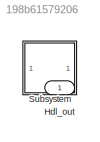
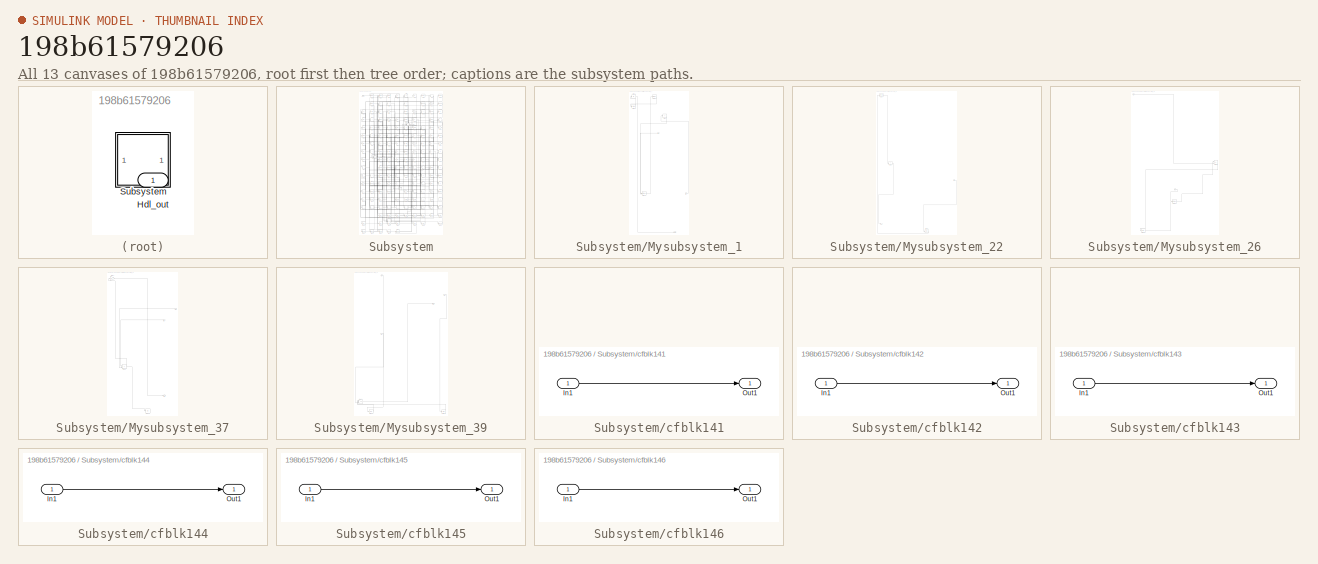
[diagram: thumbnail index - all 13 canvases of the model, root first then tree order]
MODEL slx_198b61579206
KIND model
CONFIG AbsTol = auto
CONFIG EnableMultiTasking = off
CONFIG FixedStep = auto
CONFIG MaxStep = auto
CONFIG MinStep = auto
CONFIG RelTol = 1e-3
CONFIG SampleTimeConstraint = Unconstrained
CONFIG SolverName = VariableStepAuto
CONFIG StartTime = 0.0
CONFIG StopTime = 10.0
BLOCK [Outport] Hdl_out
  OutDataTypeStr = uint8
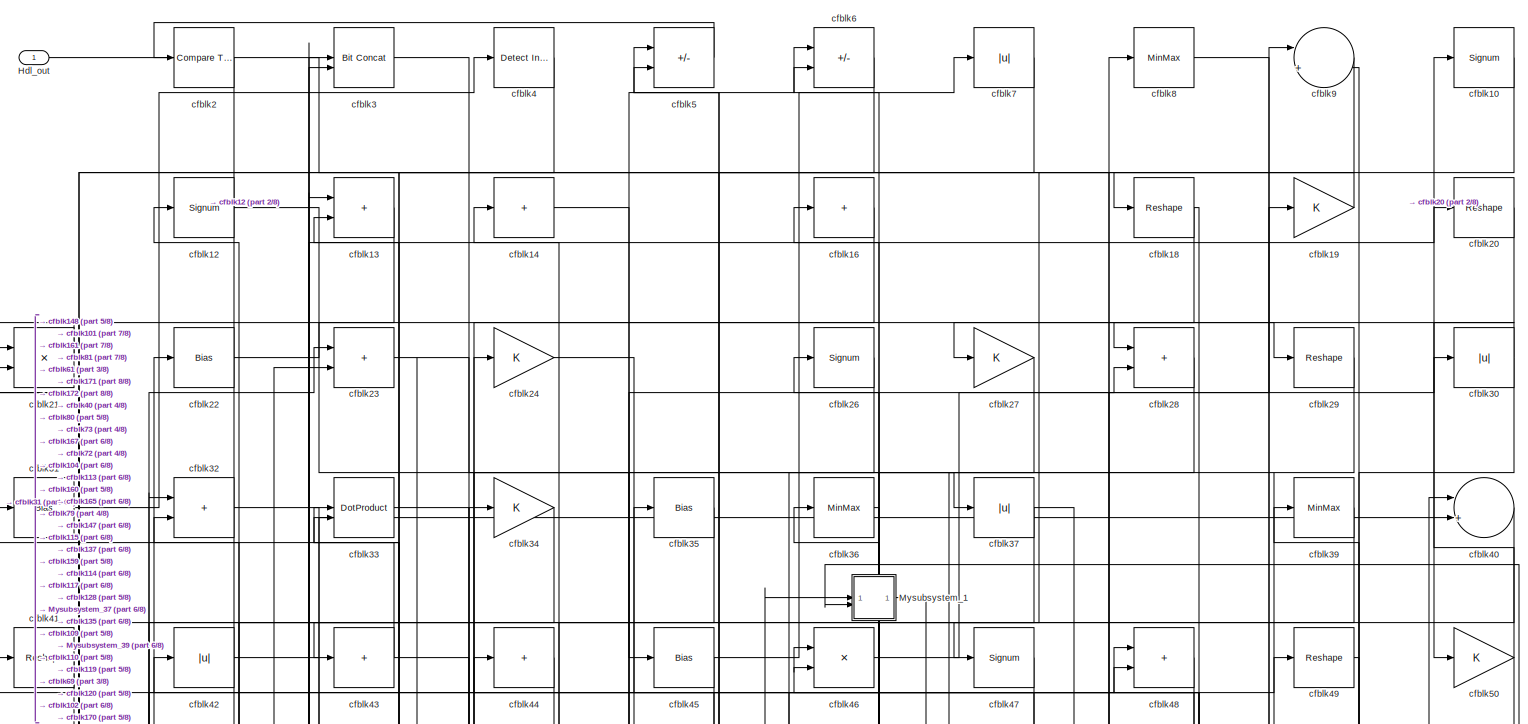
[diagram: Subsystem - part 1/8, full width, top band]
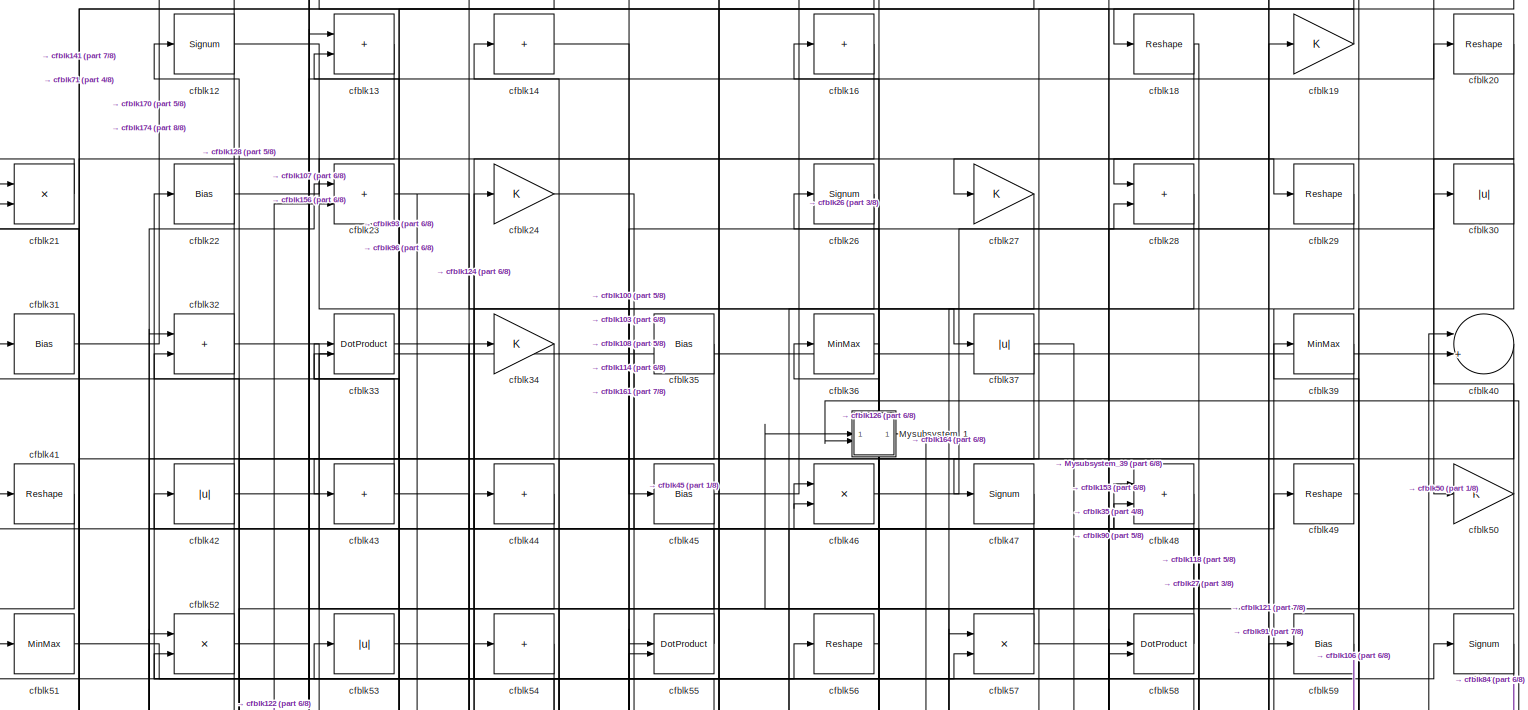
[diagram: Subsystem - part 2/8, full width, top band]
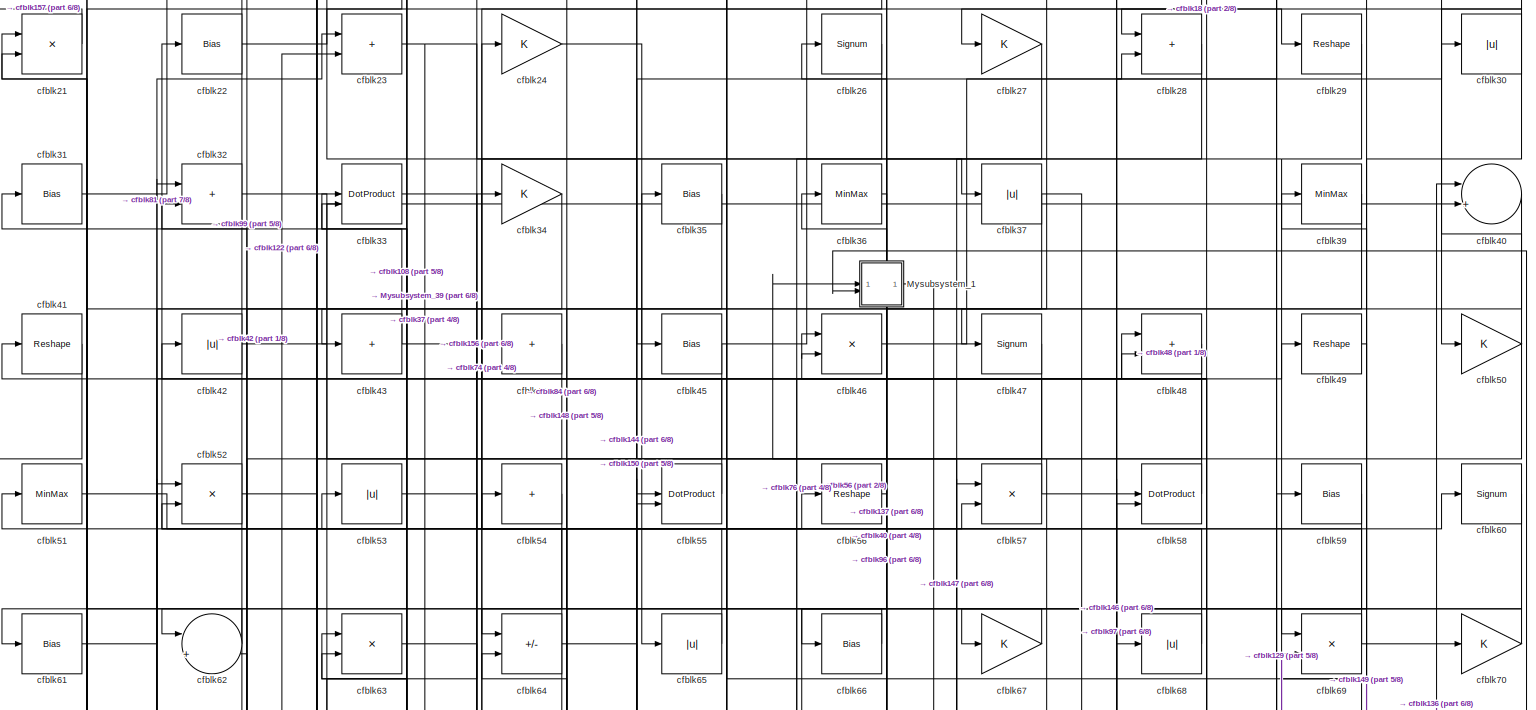
[diagram: Subsystem - part 3/8, full width, top band]
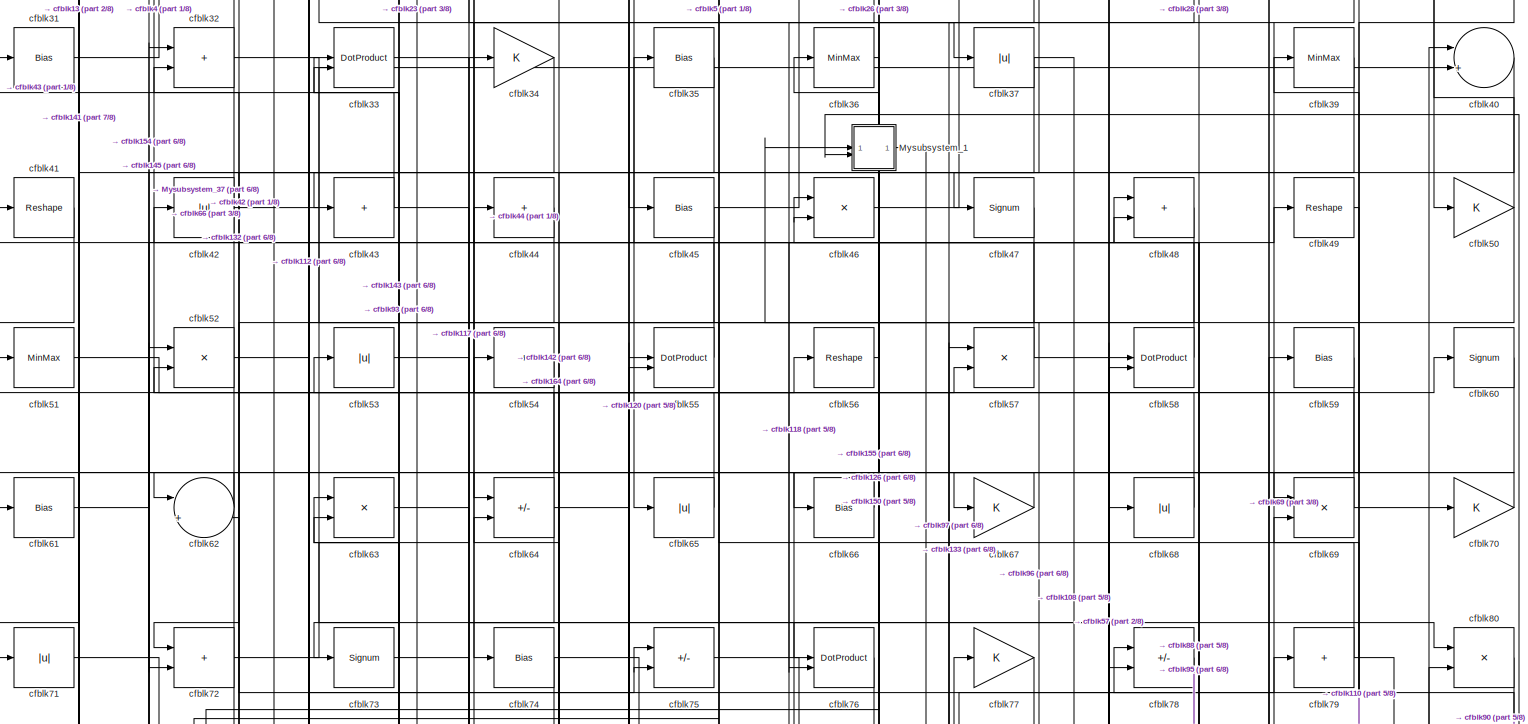
[diagram: Subsystem - part 4/8, full width, top band]
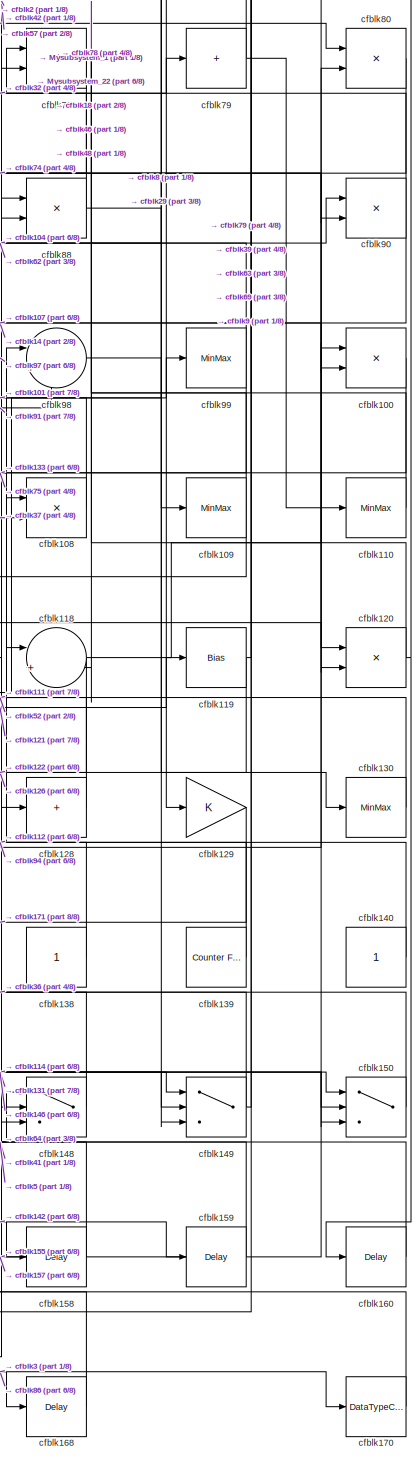
[diagram: Subsystem - part 5/8, bottom right region]
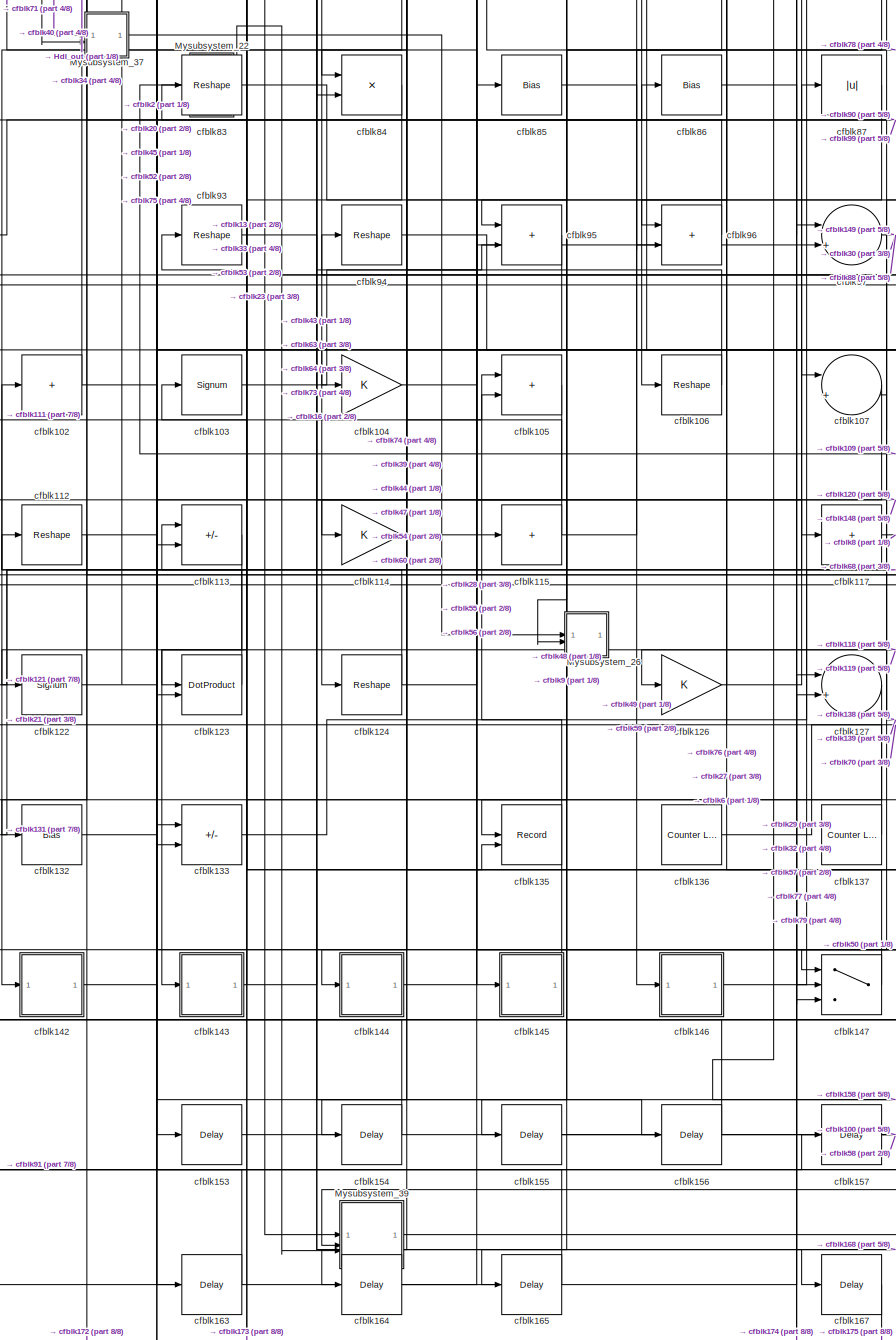
[diagram: Subsystem - part 6/8, bottom center region]
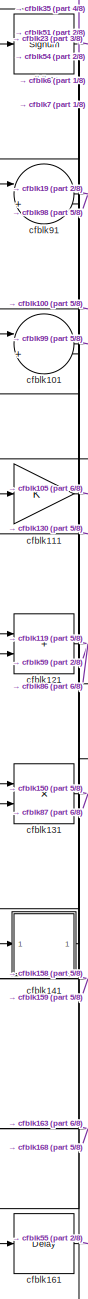
[diagram: Subsystem - part 7/8, bottom left region]
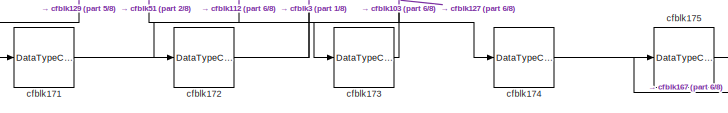
[diagram: Subsystem - part 8/8, bottom left region]
BLOCK [SubSystem] Subsystem
BLOCK [Outport] Subsystem/Hdl_out
  OutDataTypeStr = uint8
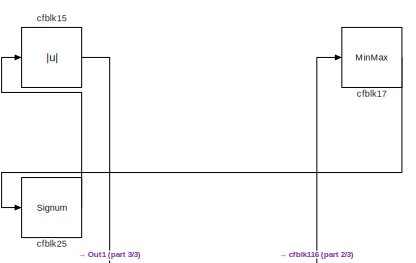
[diagram: Subsystem/Mysubsystem_1 - part 1/3, top left region]
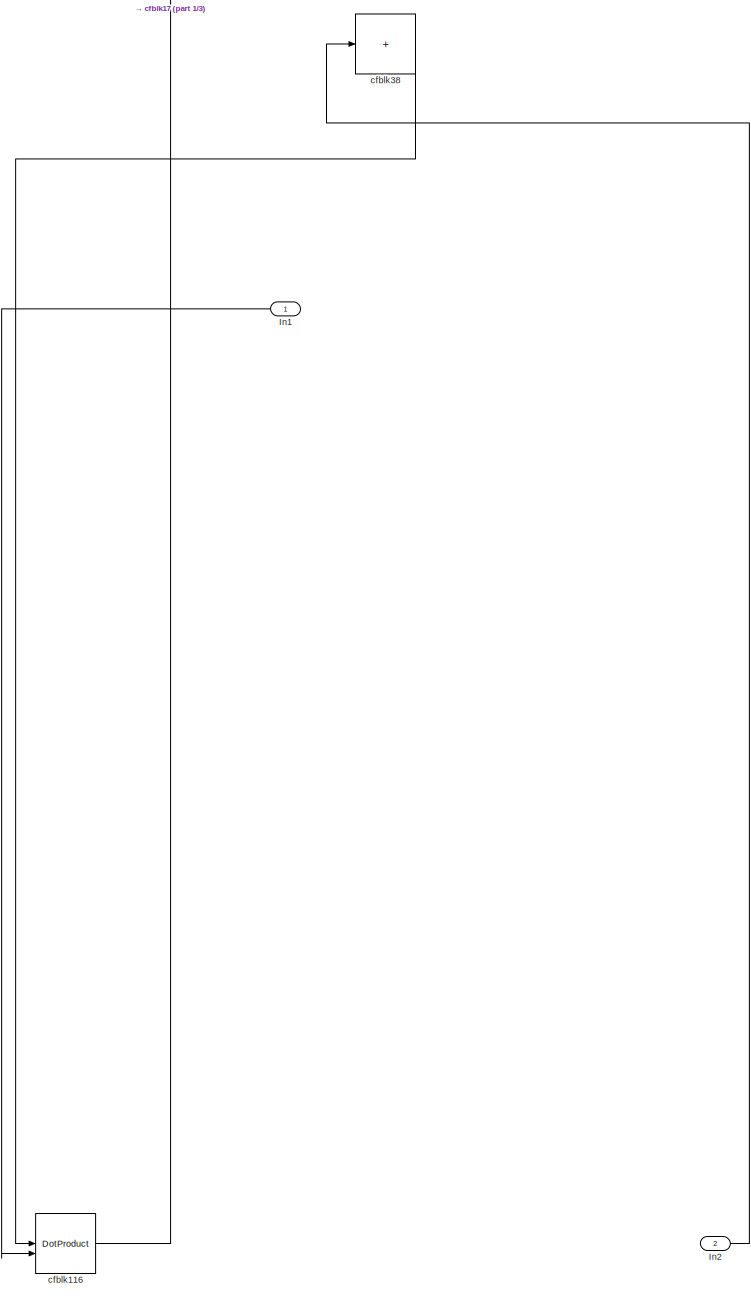
[diagram: Subsystem/Mysubsystem_1 - part 2/3, full width, middle band]
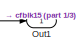
[diagram: Subsystem/Mysubsystem_1 - part 3/3, bottom right region]
BLOCK [SubSystem] Subsystem/Mysubsystem_1
  RTWFcnName = Mysubsystem_1
  RTWFcnNameOpts = User specified
  RTWFileNameOpts = Use function name
  RTWSystemCode = Reusable function
  TreatAsAtomicUnit = on
BLOCK [Inport] Subsystem/Mysubsystem_1/In1
BLOCK [Inport] Subsystem/Mysubsystem_1/In2
  Port = 2
BLOCK [Outport] Subsystem/Mysubsystem_1/Out1
BLOCK [DotProduct] Subsystem/Mysubsystem_1/cfblk116
  OutDataTypeStr = Inherit: Inherit via internal rule
BLOCK [Abs] Subsystem/Mysubsystem_1/cfblk15
  SaturateOnIntegerOverflow = off
BLOCK [MinMax] Subsystem/Mysubsystem_1/cfblk17
BLOCK [Signum] Subsystem/Mysubsystem_1/cfblk25
BLOCK [Sum] Subsystem/Mysubsystem_1/cfblk38
  IconShape = rectangular
  Inputs = +
BLOCK [SubSystem] Subsystem/Mysubsystem_22
  RTWFcnName = Mysubsystem_22
  RTWFcnNameOpts = User specified
  RTWFileNameOpts = Use function name
  RTWSystemCode = Reusable function
  TreatAsAtomicUnit = on
BLOCK [Inport] Subsystem/Mysubsystem_22/In1
BLOCK [Outport] Subsystem/Mysubsystem_22/Out1
BLOCK [Reference] Subsystem/Mysubsystem_22/cfblk1  REF=hdlsllib/Logic and Bit
Operations/Detect Rise
Positive
  SourceBlock = hdlsllib/Logic and Bit\nOperations/Detect Rise\nPositive
  SourceType = Detect Rise Positive
BLOCK [Delay] Subsystem/Mysubsystem_22/cfblk166
  InputPortMap = u0
  SampleTime = 1
BLOCK [Sum] Subsystem/Mysubsystem_22/cfblk82
  IconShape = rectangular
  Inputs = +
BLOCK [SubSystem] Subsystem/Mysubsystem_26
  RTWFcnName = Mysubsystem_26
  RTWFcnNameOpts = User specified
  RTWFileNameOpts = Use function name
  RTWSystemCode = Reusable function
  TreatAsAtomicUnit = on
BLOCK [Inport] Subsystem/Mysubsystem_26/In1
BLOCK [Inport] Subsystem/Mysubsystem_26/In2
  Port = 2
BLOCK [DotProduct] Subsystem/Mysubsystem_26/cfblk125
  OutDataTypeStr = Inherit: Inherit via internal rule
BLOCK [Delay] Subsystem/Mysubsystem_26/cfblk152
  InputPortMap = u0
  SampleTime = 1
BLOCK [Product] Subsystem/Mysubsystem_26/cfblk89
  Inputs = */
  RndMeth = Zero
  SaturateOnIntegerOverflow = on
BLOCK [SubSystem] Subsystem/Mysubsystem_37
  RTWFcnName = Mysubsystem_37
  RTWFcnNameOpts = User specified
  RTWFileNameOpts = Use function name
  RTWSystemCode = Reusable function
  TreatAsAtomicUnit = on
BLOCK [Inport] Subsystem/Mysubsystem_37/In1
BLOCK [Inport] Subsystem/Mysubsystem_37/In2
  Port = 2
BLOCK [Outport] Subsystem/Mysubsystem_37/Out1
BLOCK [Gain] Subsystem/Mysubsystem_37/cfblk11
BLOCK [Display] Subsystem/Mysubsystem_37/cfblk134
  Decimation = 1
BLOCK [Sum] Subsystem/Mysubsystem_37/cfblk92
  IconShape = rectangular
BLOCK [SubSystem] Subsystem/Mysubsystem_39
  RTWFcnName = Mysubsystem_39
  RTWFcnNameOpts = User specified
  RTWFileNameOpts = Use function name
  RTWSystemCode = Reusable function
  TreatAsAtomicUnit = on
BLOCK [Inport] Subsystem/Mysubsystem_39/In1
BLOCK [Inport] Subsystem/Mysubsystem_39/In2
  Port = 2
BLOCK [Inport] Subsystem/Mysubsystem_39/In3
  Port = 3
BLOCK [Outport] Subsystem/Mysubsystem_39/Out1
BLOCK [Switch] Subsystem/Mysubsystem_39/cfblk151
  InputSameDT = off
  SaturateOnIntegerOverflow = off
BLOCK [Delay] Subsystem/Mysubsystem_39/cfblk162
  InputPortMap = u0
  SampleTime = 1
BLOCK [Delay] Subsystem/Mysubsystem_39/cfblk169
  InputPortMap = u0
  SampleTime = 1
BLOCK [Signum] Subsystem/cfblk10
BLOCK [Product] Subsystem/cfblk100
  Inputs = */
  OutDataTypeStr = uint8
  RndMeth = Zero
  SaturateOnIntegerOverflow = on
BLOCK [Sum] Subsystem/cfblk101
  Inputs = |++
  OutDataTypeStr = uint8
BLOCK [Sum] Subsystem/cfblk102
  IconShape = rectangular
  Inputs = +
  OutDataTypeStr = uint8
BLOCK [Signum] Subsystem/cfblk103
BLOCK [Gain] Subsystem/cfblk104
  OutDataTypeStr = uint8
BLOCK [Sum] Subsystem/cfblk105
  IconShape = rectangular
  OutDataTypeStr = uint8
BLOCK [Reshape] Subsystem/cfblk106
BLOCK [Sum] Subsystem/cfblk107
  Inputs = |++
  OutDataTypeStr = uint8
BLOCK [Product] Subsystem/cfblk108
  Inputs = */
  OutDataTypeStr = uint8
  RndMeth = Zero
  SaturateOnIntegerOverflow = on
BLOCK [MinMax] Subsystem/cfblk109
  OutDataTypeStr = uint8
BLOCK [MinMax] Subsystem/cfblk110
  OutDataTypeStr = uint8
BLOCK [Gain] Subsystem/cfblk111
  OutDataTypeStr = uint8
BLOCK [Reshape] Subsystem/cfblk112
BLOCK [Sum] Subsystem/cfblk113
  IconShape = rectangular
  Inputs = +-
  OutDataTypeStr = uint8
BLOCK [Gain] Subsystem/cfblk114
  OutDataTypeStr = uint8
BLOCK [Sum] Subsystem/cfblk115
  IconShape = rectangular
  Inputs = +
  OutDataTypeStr = uint8
BLOCK [Sum] Subsystem/cfblk117
  IconShape = rectangular
  Inputs = +
  OutDataTypeStr = uint8
BLOCK [Sum] Subsystem/cfblk118
  Inputs = |++
  OutDataTypeStr = uint8
BLOCK [Bias] Subsystem/cfblk119
  Bias = 0.0
  SaturateOnIntegerOverflow = off
BLOCK [Signum] Subsystem/cfblk12
BLOCK [Product] Subsystem/cfblk120
  Inputs = */
  OutDataTypeStr = uint8
  RndMeth = Zero
  SaturateOnIntegerOverflow = on
BLOCK [Sum] Subsystem/cfblk121
  IconShape = rectangular
  OutDataTypeStr = uint8
BLOCK [Signum] Subsystem/cfblk122
BLOCK [DotProduct] Subsystem/cfblk123
  OutDataTypeStr = uint8
BLOCK [Reshape] Subsystem/cfblk124
BLOCK [Gain] Subsystem/cfblk126
  OutDataTypeStr = uint8
BLOCK [Sum] Subsystem/cfblk127
  Inputs = |++
  OutDataTypeStr = uint8
BLOCK [Sum] Subsystem/cfblk128
  IconShape = rectangular
  Inputs = +
  OutDataTypeStr = uint8
BLOCK [Gain] Subsystem/cfblk129
  OutDataTypeStr = uint8
BLOCK [Sum] Subsystem/cfblk13
  IconShape = rectangular
  OutDataTypeStr = uint8
BLOCK [MinMax] Subsystem/cfblk130
  OutDataTypeStr = uint8
BLOCK [Product] Subsystem/cfblk131
  Inputs = */
  OutDataTypeStr = uint8
  RndMeth = Zero
  SaturateOnIntegerOverflow = on
BLOCK [Bias] Subsystem/cfblk132
  Bias = 0.0
  SaturateOnIntegerOverflow = off
BLOCK [Sum] Subsystem/cfblk133
  IconShape = rectangular
  Inputs = +-
  OutDataTypeStr = uint8
BLOCK [Record] Subsystem/cfblk135
  CompatibilityTag = XY
  FileSettingsInternal = {"entries":[{"content":{"excelSettings":{"content":{},"type":"Streamout.ExcelSettings"}},"type":"Streamout.FileSettingStorage","uuid":""}],"packageUris":["http:\/\/schema.mathworks.com\/mf0\/streamout_blocks\/R2020a"],"version":"1.0"}
  Layout = [1 1]
  SignalsInternal = {"entries":[{"content":{"signals":[{"content":{"blockPath":[],"dimensions":[1],"domain":"","lineColor":"#a2142f","plots":[1],"port":1,"signalID":18176,"signalName":"cfblk48"},"type":"RecordBlkView.Signal","uuid":""},{"content":{"blockPath":[],"dimensions":[1],"domain":"","lineColor":"#139fff","plots":[1],"port":2,"signalID":18179,"signalName":"cfblk143"},"type":"RecordBlkView.Signal","uuid":""}]},...<+143ch>
  VisualizationBindings = {"xyplotplugin":{"info":[{"series":[{"bindingParametersList":[{"parameter":"X-Axis","signalID":18176,"signalName":"cfblk48"},{"parameter":"Y-Axis","signalID":18179,"signalName":"cfblk143"}],"seriesID":11037}],"subplotID":1}]}}
  st = -1
BLOCK [Reference] Subsystem/cfblk136  REF=hdlsllib/Sources/Counter
Limited
  SourceBlock = hdlsllib/Sources/Counter\nLimited
  SourceType = Counter Limited
BLOCK [Reference] Subsystem/cfblk137  REF=hdlsllib/Sources/Counter
Limited
  SourceBlock = hdlsllib/Sources/Counter\nLimited
  SourceType = Counter Limited
BLOCK [Constant] Subsystem/cfblk138
  OutDataTypeStr = uint8
  SampleTime = -1
BLOCK [Reference] Subsystem/cfblk139  REF=hdlsllib/Sources/Counter
Free-Running
  SourceBlock = hdlsllib/Sources/Counter\nFree-Running
  SourceType = Counter Free-Running
BLOCK [Sum] Subsystem/cfblk14
  IconShape = rectangular
  Inputs = +
  OutDataTypeStr = uint8
BLOCK [Constant] Subsystem/cfblk140
  OutDataTypeStr = uint8
  SampleTime = -1
BLOCK [SubSystem] Subsystem/cfblk141
  LibrarySourceBlock = hdlsllib/Ports &\nSubsystems/Subsystem
BLOCK [Inport] Subsystem/cfblk141/In1
BLOCK [Outport] Subsystem/cfblk141/Out1
BLOCK [SubSystem] Subsystem/cfblk142
  LibrarySourceBlock = hdlsllib/Ports &\nSubsystems/Subsystem
BLOCK [Inport] Subsystem/cfblk142/In1
BLOCK [Outport] Subsystem/cfblk142/Out1
BLOCK [SubSystem] Subsystem/cfblk143
  LibrarySourceBlock = hdlsllib/Ports &\nSubsystems/Subsystem
BLOCK [Inport] Subsystem/cfblk143/In1
BLOCK [Outport] Subsystem/cfblk143/Out1
BLOCK [SubSystem] Subsystem/cfblk144
  LibrarySourceBlock = hdlsllib/Ports &\nSubsystems/Subsystem
BLOCK [Inport] Subsystem/cfblk144/In1
BLOCK [Outport] Subsystem/cfblk144/Out1
BLOCK [SubSystem] Subsystem/cfblk145
  LibrarySourceBlock = hdlsllib/Ports &\nSubsystems/Subsystem
BLOCK [Inport] Subsystem/cfblk145/In1
BLOCK [Outport] Subsystem/cfblk145/Out1
BLOCK [SubSystem] Subsystem/cfblk146
  LibrarySourceBlock = hdlsllib/Ports &\nSubsystems/Subsystem
BLOCK [Inport] Subsystem/cfblk146/In1
BLOCK [Outport] Subsystem/cfblk146/Out1
BLOCK [Switch] Subsystem/cfblk147
  InputSameDT = off
  OutDataTypeStr = uint8
  SaturateOnIntegerOverflow = off
BLOCK [Switch] Subsystem/cfblk148
  InputSameDT = off
  OutDataTypeStr = uint8
  SaturateOnIntegerOverflow = off
BLOCK [Switch] Subsystem/cfblk149
  InputSameDT = off
  OutDataTypeStr = uint8
  SaturateOnIntegerOverflow = off
BLOCK [Switch] Subsystem/cfblk150
  InputSameDT = off
  OutDataTypeStr = uint8
  SaturateOnIntegerOverflow = off
BLOCK [Delay] Subsystem/cfblk153
  InputPortMap = u0
  SampleTime = 1
BLOCK [Delay] Subsystem/cfblk154
  InputPortMap = u0
  SampleTime = 1
BLOCK [Delay] Subsystem/cfblk155
  InputPortMap = u0
  SampleTime = 1
BLOCK [Delay] Subsystem/cfblk156
  InputPortMap = u0
  SampleTime = 1
BLOCK [Delay] Subsystem/cfblk157
  InputPortMap = u0
  SampleTime = 1
BLOCK [Delay] Subsystem/cfblk158
  InputPortMap = u0
  SampleTime = 1
BLOCK [Delay] Subsystem/cfblk159
  InputPortMap = u0
  SampleTime = 1
BLOCK [Sum] Subsystem/cfblk16
  IconShape = rectangular
  Inputs = +
  OutDataTypeStr = uint8
BLOCK [Delay] Subsystem/cfblk160
  InputPortMap = u0
  SampleTime = 1
BLOCK [Delay] Subsystem/cfblk161
  InputPortMap = u0
  SampleTime = 1
BLOCK [Delay] Subsystem/cfblk163
  InputPortMap = u0
  SampleTime = 1
BLOCK [Delay] Subsystem/cfblk164
  InputPortMap = u0
  SampleTime = 1
BLOCK [Delay] Subsystem/cfblk165
  InputPortMap = u0
  SampleTime = 1
BLOCK [Delay] Subsystem/cfblk167
  InputPortMap = u0
  SampleTime = 1
BLOCK [Delay] Subsystem/cfblk168
  InputPortMap = u0
  SampleTime = 1
BLOCK [DataTypeConversion] Subsystem/cfblk170
  OutDataTypeStr = uint8
  RndMeth = Floor
  SaturateOnIntegerOverflow = off
BLOCK [DataTypeConversion] Subsystem/cfblk171
  OutDataTypeStr = uint8
  RndMeth = Floor
  SaturateOnIntegerOverflow = off
BLOCK [DataTypeConversion] Subsystem/cfblk172
  OutDataTypeStr = uint8
  RndMeth = Floor
  SaturateOnIntegerOverflow = off
BLOCK [DataTypeConversion] Subsystem/cfblk173
  OutDataTypeStr = uint8
  RndMeth = Floor
  SaturateOnIntegerOverflow = off
BLOCK [DataTypeConversion] Subsystem/cfblk174
  OutDataTypeStr = uint8
  RndMeth = Floor
  SaturateOnIntegerOverflow = off
BLOCK [DataTypeConversion] Subsystem/cfblk175
  OutDataTypeStr = uint8
  RndMeth = Floor
  SaturateOnIntegerOverflow = off
BLOCK [Reshape] Subsystem/cfblk18
BLOCK [Gain] Subsystem/cfblk19
  OutDataTypeStr = uint8
BLOCK [Reference] Subsystem/cfblk2  REF=hdlsllib/Logic and Bit
Operations/Compare
To Constant
  SourceBlock = hdlsllib/Logic and Bit\nOperations/Compare\nTo Constant
  SourceType = Compare To Constant
BLOCK [Reshape] Subsystem/cfblk20
BLOCK [Product] Subsystem/cfblk21
  Inputs = */
  OutDataTypeStr = uint8
  RndMeth = Zero
  SaturateOnIntegerOverflow = on
BLOCK [Bias] Subsystem/cfblk22
  Bias = 0.0
  SaturateOnIntegerOverflow = off
BLOCK [Sum] Subsystem/cfblk23
  IconShape = rectangular
  OutDataTypeStr = uint8
BLOCK [Gain] Subsystem/cfblk24
  OutDataTypeStr = uint8
BLOCK [Signum] Subsystem/cfblk26
BLOCK [Gain] Subsystem/cfblk27
  OutDataTypeStr = uint8
BLOCK [Sum] Subsystem/cfblk28
  IconShape = rectangular
  OutDataTypeStr = uint8
BLOCK [Reshape] Subsystem/cfblk29
BLOCK [Reference] Subsystem/cfblk3  REF=hdlsllib/Logic and Bit
Operations/Bit Concat
  SourceBlock = hdlsllib/Logic and Bit\nOperations/Bit Concat
  SourceType = Bit Concat
BLOCK [Abs] Subsystem/cfblk30
  OutDataTypeStr = uint8
  SaturateOnIntegerOverflow = off
BLOCK [Bias] Subsystem/cfblk31
  Bias = 0.0
  SaturateOnIntegerOverflow = off
BLOCK [Sum] Subsystem/cfblk32
  IconShape = rectangular
  OutDataTypeStr = uint8
BLOCK [DotProduct] Subsystem/cfblk33
  OutDataTypeStr = uint8
BLOCK [Gain] Subsystem/cfblk34
  OutDataTypeStr = uint8
BLOCK [Bias] Subsystem/cfblk35
  Bias = 0.0
  SaturateOnIntegerOverflow = off
BLOCK [MinMax] Subsystem/cfblk36
  OutDataTypeStr = uint8
BLOCK [Abs] Subsystem/cfblk37
  OutDataTypeStr = uint8
  SaturateOnIntegerOverflow = off
BLOCK [MinMax] Subsystem/cfblk39
  OutDataTypeStr = uint8
BLOCK [Reference] Subsystem/cfblk4  REF=simulink/Logic and Bit
Operations/Detect
Increase
  LibrarySourceBlock = hdlsllib/Logic and Bit\nOperations/Detect\nIncrease
  SourceBlock = simulink/Logic and Bit\nOperations/Detect\nIncrease
  SourceType = Detect Increase
BLOCK [Sum] Subsystem/cfblk40
  Inputs = |++
  OutDataTypeStr = uint8
BLOCK [Reshape] Subsystem/cfblk41
BLOCK [Abs] Subsystem/cfblk42
  OutDataTypeStr = uint8
  SaturateOnIntegerOverflow = off
BLOCK [Sum] Subsystem/cfblk43
  IconShape = rectangular
  Inputs = +
  OutDataTypeStr = uint8
BLOCK [Sum] Subsystem/cfblk44
  IconShape = rectangular
  Inputs = +
  OutDataTypeStr = uint8
BLOCK [Bias] Subsystem/cfblk45
  Bias = 0.0
  SaturateOnIntegerOverflow = off
BLOCK [Product] Subsystem/cfblk46
  Inputs = */
  OutDataTypeStr = uint8
  RndMeth = Zero
  SaturateOnIntegerOverflow = on
BLOCK [Signum] Subsystem/cfblk47
BLOCK [Sum] Subsystem/cfblk48
  IconShape = rectangular
  OutDataTypeStr = uint8
BLOCK [Reshape] Subsystem/cfblk49
BLOCK [Sum] Subsystem/cfblk5
  IconShape = rectangular
  Inputs = +-
  OutDataTypeStr = uint8
BLOCK [Gain] Subsystem/cfblk50
  OutDataTypeStr = uint8
BLOCK [MinMax] Subsystem/cfblk51
  OutDataTypeStr = uint8
BLOCK [Product] Subsystem/cfblk52
  Inputs = */
  OutDataTypeStr = uint8
  RndMeth = Zero
  SaturateOnIntegerOverflow = on
BLOCK [Abs] Subsystem/cfblk53
  OutDataTypeStr = uint8
  SaturateOnIntegerOverflow = off
BLOCK [Sum] Subsystem/cfblk54
  IconShape = rectangular
  Inputs = +
  OutDataTypeStr = uint8
BLOCK [DotProduct] Subsystem/cfblk55
  OutDataTypeStr = uint8
BLOCK [Reshape] Subsystem/cfblk56
BLOCK [Product] Subsystem/cfblk57
  Inputs = */
  OutDataTypeStr = uint8
  RndMeth = Zero
  SaturateOnIntegerOverflow = on
BLOCK [DotProduct] Subsystem/cfblk58
  OutDataTypeStr = uint8
BLOCK [Bias] Subsystem/cfblk59
  Bias = 0.0
  SaturateOnIntegerOverflow = off
BLOCK [Sum] Subsystem/cfblk6
  IconShape = rectangular
  Inputs = +-
  OutDataTypeStr = uint8
BLOCK [Signum] Subsystem/cfblk60
BLOCK [Bias] Subsystem/cfblk61
  Bias = 0.0
  SaturateOnIntegerOverflow = off
BLOCK [Sum] Subsystem/cfblk62
  Inputs = |++
  OutDataTypeStr = uint8
BLOCK [Product] Subsystem/cfblk63
  Inputs = */
  OutDataTypeStr = uint8
  RndMeth = Zero
  SaturateOnIntegerOverflow = on
BLOCK [Sum] Subsystem/cfblk64
  IconShape = rectangular
  Inputs = +-
  OutDataTypeStr = uint8
BLOCK [Abs] Subsystem/cfblk65
  OutDataTypeStr = uint8
  SaturateOnIntegerOverflow = off
BLOCK [Bias] Subsystem/cfblk66
  Bias = 0.0
  SaturateOnIntegerOverflow = off
BLOCK [Gain] Subsystem/cfblk67
  OutDataTypeStr = uint8
BLOCK [Abs] Subsystem/cfblk68
  OutDataTypeStr = uint8
  SaturateOnIntegerOverflow = off
BLOCK [Product] Subsystem/cfblk69
  Inputs = */
  OutDataTypeStr = uint8
  RndMeth = Zero
  SaturateOnIntegerOverflow = on
BLOCK [Abs] Subsystem/cfblk7
  OutDataTypeStr = uint8
  SaturateOnIntegerOverflow = off
BLOCK [Gain] Subsystem/cfblk70
  OutDataTypeStr = uint8
BLOCK [Abs] Subsystem/cfblk71
  OutDataTypeStr = uint8
  SaturateOnIntegerOverflow = off
BLOCK [Sum] Subsystem/cfblk72
  IconShape = rectangular
  OutDataTypeStr = uint8
BLOCK [Signum] Subsystem/cfblk73
BLOCK [Bias] Subsystem/cfblk74
  Bias = 0.0
  SaturateOnIntegerOverflow = off
BLOCK [Sum] Subsystem/cfblk75
  IconShape = rectangular
  Inputs = +-
  OutDataTypeStr = uint8
BLOCK [DotProduct] Subsystem/cfblk76
  OutDataTypeStr = uint8
BLOCK [Gain] Subsystem/cfblk77
  OutDataTypeStr = uint8
BLOCK [Sum] Subsystem/cfblk78
  IconShape = rectangular
  Inputs = +-
  OutDataTypeStr = uint8
BLOCK [Sum] Subsystem/cfblk79
  IconShape = rectangular
  Inputs = +
  OutDataTypeStr = uint8
BLOCK [MinMax] Subsystem/cfblk8
  OutDataTypeStr = uint8
BLOCK [Product] Subsystem/cfblk80
  Inputs = */
  OutDataTypeStr = uint8
  RndMeth = Zero
  SaturateOnIntegerOverflow = on
BLOCK [Signum] Subsystem/cfblk81
BLOCK [Reshape] Subsystem/cfblk83
BLOCK [Product] Subsystem/cfblk84
  Inputs = */
  OutDataTypeStr = uint8
  RndMeth = Zero
  SaturateOnIntegerOverflow = on
BLOCK [Bias] Subsystem/cfblk85
  Bias = 0.0
  SaturateOnIntegerOverflow = off
BLOCK [Bias] Subsystem/cfblk86
  Bias = 0.0
  SaturateOnIntegerOverflow = off
BLOCK [Abs] Subsystem/cfblk87
  OutDataTypeStr = uint8
  SaturateOnIntegerOverflow = off
BLOCK [Product] Subsystem/cfblk88
  Inputs = */
  OutDataTypeStr = uint8
  RndMeth = Zero
  SaturateOnIntegerOverflow = on
BLOCK [Sum] Subsystem/cfblk9
  Inputs = |++
  OutDataTypeStr = uint8
BLOCK [Product] Subsystem/cfblk90
  Inputs = */
  OutDataTypeStr = uint8
  RndMeth = Zero
  SaturateOnIntegerOverflow = on
BLOCK [Sum] Subsystem/cfblk91
  Inputs = |++
  OutDataTypeStr = uint8
BLOCK [Reshape] Subsystem/cfblk93
BLOCK [Reshape] Subsystem/cfblk94
BLOCK [Sum] Subsystem/cfblk95
  IconShape = rectangular
  OutDataTypeStr = uint8
BLOCK [Sum] Subsystem/cfblk96
  IconShape = rectangular
  OutDataTypeStr = uint8
BLOCK [Sum] Subsystem/cfblk97
  Inputs = |++
  OutDataTypeStr = uint8
BLOCK [Sum] Subsystem/cfblk98
  Inputs = |++
  OutDataTypeStr = uint8
BLOCK [MinMax] Subsystem/cfblk99
  OutDataTypeStr = uint8
LINE Subsystem/Mysubsystem_1/In1:1 -> Subsystem/Mysubsystem_1/cfblk116:2
LINE Subsystem/Mysubsystem_1/In2:1 -> Subsystem/Mysubsystem_1/cfblk38:1
LINE Subsystem/Mysubsystem_1/cfblk116:1 -> Subsystem/Mysubsystem_1/cfblk17:1
LINE Subsystem/Mysubsystem_1/cfblk15:1 -> Subsystem/Mysubsystem_1/Out1:1
LINE Subsystem/Mysubsystem_1/cfblk17:1 -> Subsystem/Mysubsystem_1/cfblk25:1
LINE Subsystem/Mysubsystem_1/cfblk25:1 -> Subsystem/Mysubsystem_1/cfblk15:1
LINE Subsystem/Mysubsystem_1/cfblk38:1 -> Subsystem/Mysubsystem_1/cfblk116:1
LINE Subsystem/Mysubsystem_1:1 -> Subsystem/cfblk159:1
LINE Subsystem/Mysubsystem_22/In1:1 -> Subsystem/Mysubsystem_22/cfblk166:1
LINE Subsystem/Mysubsystem_22/cfblk166:1 -> Subsystem/Mysubsystem_22/cfblk1:1
LINE Subsystem/Mysubsystem_22/cfblk1:1 -> Subsystem/Mysubsystem_22/cfblk82:1
LINE Subsystem/Mysubsystem_22/cfblk82:1 -> Subsystem/Mysubsystem_22/Out1:1
LINE Subsystem/Mysubsystem_22:1 -> Subsystem/Mysubsystem_39:3
LINE Subsystem/Mysubsystem_26/In1:1 -> Subsystem/Mysubsystem_26/cfblk89:2
LINE Subsystem/Mysubsystem_26/In2:1 -> Subsystem/Mysubsystem_26/cfblk125:1
LINE Subsystem/Mysubsystem_26/cfblk125:1 -> Subsystem/Mysubsystem_26/cfblk89:1
LINE Subsystem/Mysubsystem_26/cfblk152:1 -> Subsystem/Mysubsystem_26/cfblk125:2
LINE Subsystem/Mysubsystem_26/cfblk89:1 -> Subsystem/Mysubsystem_26/cfblk152:1
LINE Subsystem/Mysubsystem_37/In1:1 -> Subsystem/Mysubsystem_37/cfblk92:2
LINE Subsystem/Mysubsystem_37/In2:1 -> Subsystem/Mysubsystem_37/cfblk92:1
LINE Subsystem/Mysubsystem_37/cfblk11:1 -> Subsystem/Mysubsystem_37/Out1:1
NET Subsystem/Mysubsystem_37/cfblk92:1 -> Subsystem/Mysubsystem_37/cfblk11:1, Subsystem/Mysubsystem_37/cfblk134:1
LINE Subsystem/Mysubsystem_37:1 -> Subsystem/Mysubsystem_26:1
LINE Subsystem/Mysubsystem_39/In1:1 -> Subsystem/Mysubsystem_39/cfblk162:1
LINE Subsystem/Mysubsystem_39/In2:1 -> Subsystem/Mysubsystem_39/cfblk169:1
LINE Subsystem/Mysubsystem_39/In3:1 -> Subsystem/Mysubsystem_39/cfblk151:3
LINE Subsystem/Mysubsystem_39/cfblk151:1 -> Subsystem/Mysubsystem_39/Out1:1
LINE Subsystem/Mysubsystem_39/cfblk162:1 -> Subsystem/Mysubsystem_39/cfblk151:1
LINE Subsystem/Mysubsystem_39/cfblk169:1 -> Subsystem/Mysubsystem_39/cfblk151:2
LINE Subsystem/Mysubsystem_39:1 -> Subsystem/cfblk58:1
LINE Subsystem/cfblk100:1 -> Subsystem/cfblk121:2
LINE Subsystem/cfblk101:1 -> Subsystem/cfblk99:1
NET Subsystem/cfblk102:1 -> Subsystem/Hdl_out:1, Subsystem/cfblk153:1
LINE Subsystem/cfblk103:1 -> Subsystem/cfblk55:2
NET Subsystem/cfblk104:1 -> Subsystem/cfblk6:2, Subsystem/cfblk90:1
LINE Subsystem/cfblk105:1 -> Subsystem/cfblk131:2
LINE Subsystem/cfblk106:1 -> Subsystem/cfblk54:1
NET Subsystem/cfblk107:1 -> Subsystem/Mysubsystem_26:2, Subsystem/cfblk123:2
LINE Subsystem/cfblk108:1 -> Subsystem/cfblk63:2
NET Subsystem/cfblk109:1 -> Subsystem/Mysubsystem_22:1, Subsystem/cfblk41:1
LINE Subsystem/cfblk10:1 -> Subsystem/cfblk47:1
NET Subsystem/cfblk110:1 -> Subsystem/cfblk39:1, Subsystem/cfblk46:1, Subsystem/cfblk46:2
LINE Subsystem/cfblk111:1 -> Subsystem/cfblk105:2
NET Subsystem/cfblk112:1 -> Subsystem/cfblk147:3, Subsystem/cfblk172:1, Subsystem/cfblk75:1, Subsystem/cfblk75:2
LINE Subsystem/cfblk113:1 -> Subsystem/cfblk143:1
NET Subsystem/cfblk114:1 -> Subsystem/cfblk149:3, Subsystem/cfblk56:1
NET Subsystem/cfblk115:1 -> Subsystem/cfblk44:1, Subsystem/cfblk49:1
LINE Subsystem/cfblk117:1 -> Subsystem/cfblk8:1
NET Subsystem/cfblk118:1 -> Subsystem/cfblk122:1, Subsystem/cfblk80:2
NET Subsystem/cfblk119:1 -> Subsystem/cfblk126:1, Subsystem/cfblk9:2
NET Subsystem/cfblk120:1 -> Subsystem/Mysubsystem_1:2, Subsystem/cfblk160:1, Subsystem/cfblk48:2
NET Subsystem/cfblk121:1 -> Subsystem/cfblk119:1, Subsystem/cfblk59:1, Subsystem/cfblk86:1
NET Subsystem/cfblk122:1 -> Subsystem/cfblk20:1, Subsystem/cfblk23:2
LINE Subsystem/cfblk123:1 -> Subsystem/cfblk102:1
NET Subsystem/cfblk124:1 -> Subsystem/cfblk83:1, Subsystem/cfblk97:2
NET Subsystem/cfblk126:1 -> Subsystem/cfblk16:1, Subsystem/cfblk77:1
LINE Subsystem/cfblk127:1 -> Subsystem/cfblk173:1
LINE Subsystem/cfblk128:1 -> Subsystem/cfblk52:2
LINE Subsystem/cfblk129:1 -> Subsystem/cfblk171:1
LINE Subsystem/cfblk12:1 -> Subsystem/cfblk45:1
LINE Subsystem/cfblk130:1 -> Subsystem/cfblk111:1
NET Subsystem/cfblk131:1 -> Subsystem/cfblk150:3, Subsystem/cfblk87:1
LINE Subsystem/cfblk132:1 -> Subsystem/cfblk163:1
LINE Subsystem/cfblk133:1 -> Subsystem/cfblk79:1
LINE Subsystem/cfblk136:1 -> Subsystem/cfblk70:1
NET Subsystem/cfblk137:1 -> Subsystem/cfblk21:2, Subsystem/cfblk6:1
LINE Subsystem/cfblk138:1 -> Subsystem/cfblk112:1
LINE Subsystem/cfblk139:1 -> Subsystem/cfblk94:1
LINE Subsystem/cfblk13:1 -> Subsystem/cfblk71:1
LINE Subsystem/cfblk140:1 -> Subsystem/cfblk98:1
LINE Subsystem/cfblk141/In1:1 -> Subsystem/cfblk141/Out1:1
LINE Subsystem/cfblk141:1 -> Subsystem/cfblk51:1
LINE Subsystem/cfblk142/In1:1 -> Subsystem/cfblk142/Out1:1
LINE Subsystem/cfblk142:1 -> Subsystem/cfblk158:1
LINE Subsystem/cfblk143/In1:1 -> Subsystem/cfblk143/Out1:1
NET Subsystem/cfblk143:1 -> Subsystem/cfblk135:2, Subsystem/cfblk33:1
LINE Subsystem/cfblk144/In1:1 -> Subsystem/cfblk144/Out1:1
NET Subsystem/cfblk144:1 -> Subsystem/cfblk28:2, Subsystem/cfblk85:1
LINE Subsystem/cfblk145/In1:1 -> Subsystem/cfblk145/Out1:1
LINE Subsystem/cfblk145:1 -> Subsystem/cfblk105:1
LINE Subsystem/cfblk146/In1:1 -> Subsystem/cfblk146/Out1:1
NET Subsystem/cfblk146:1 -> Subsystem/cfblk149:2, Subsystem/cfblk68:1
NET Subsystem/cfblk147:1 -> Subsystem/cfblk113:1, Subsystem/cfblk93:1
LINE Subsystem/cfblk148:1 -> Subsystem/cfblk64:2
NET Subsystem/cfblk149:1 -> Subsystem/cfblk63:1, Subsystem/cfblk69:2
NET Subsystem/cfblk14:1 -> Subsystem/cfblk100:2, Subsystem/cfblk108:1
LINE Subsystem/cfblk150:1 -> Subsystem/cfblk36:1
LINE Subsystem/cfblk153:1 -> Subsystem/cfblk58:2
LINE Subsystem/cfblk154:1 -> Subsystem/cfblk32:1
LINE Subsystem/cfblk155:1 -> Subsystem/cfblk88:1
LINE Subsystem/cfblk156:1 -> Subsystem/cfblk13:1
LINE Subsystem/cfblk157:1 -> Subsystem/cfblk100:1
LINE Subsystem/cfblk158:1 -> Subsystem/cfblk101:1
LINE Subsystem/cfblk159:1 -> Subsystem/cfblk131:1
LINE Subsystem/cfblk160:1 -> Subsystem/cfblk5:2
LINE Subsystem/cfblk161:1 -> Subsystem/cfblk55:1
LINE Subsystem/cfblk163:1 -> Subsystem/cfblk91:2
LINE Subsystem/cfblk164:1 -> Subsystem/cfblk57:1
LINE Subsystem/cfblk165:1 -> Subsystem/cfblk133:1
LINE Subsystem/cfblk167:1 -> Subsystem/cfblk175:1
LINE Subsystem/cfblk168:1 -> Subsystem/cfblk121:1
LINE Subsystem/cfblk16:1 -> Subsystem/cfblk124:1
LINE Subsystem/cfblk170:1 -> Subsystem/cfblk52:1
LINE Subsystem/cfblk171:1 -> Subsystem/cfblk3:1
LINE Subsystem/cfblk172:1 -> Subsystem/cfblk3:2
LINE Subsystem/cfblk173:1 -> Subsystem/cfblk103:1
LINE Subsystem/cfblk174:1 -> Subsystem/cfblk127:1
LINE Subsystem/cfblk175:1 -> Subsystem/cfblk127:2
NET Subsystem/cfblk18:1 -> Subsystem/cfblk118:2, Subsystem/cfblk27:1
LINE Subsystem/cfblk19:1 -> Subsystem/cfblk18:1
LINE Subsystem/cfblk20:1 -> Subsystem/cfblk50:1
LINE Subsystem/cfblk21:1 -> Subsystem/cfblk157:1
LINE Subsystem/cfblk22:1 -> Subsystem/cfblk29:1
NET Subsystem/cfblk23:1 -> Subsystem/Mysubsystem_39:1, Subsystem/cfblk37:1
LINE Subsystem/cfblk24:1 -> Subsystem/cfblk65:1
LINE Subsystem/cfblk26:1 -> Subsystem/cfblk76:2
LINE Subsystem/cfblk27:1 -> Subsystem/cfblk96:1
LINE Subsystem/cfblk28:1 -> Subsystem/cfblk74:1
NET Subsystem/cfblk29:1 -> Subsystem/cfblk129:1, Subsystem/cfblk147:2
NET Subsystem/cfblk2:1 -> Subsystem/cfblk104:1, Subsystem/cfblk128:1
NET Subsystem/cfblk30:1 -> Subsystem/cfblk28:1, Subsystem/cfblk69:1
LINE Subsystem/cfblk31:1 -> Subsystem/cfblk4:1
LINE Subsystem/cfblk32:1 -> Subsystem/cfblk97:1
LINE Subsystem/cfblk33:1 -> Subsystem/cfblk78:2
LINE Subsystem/cfblk34:1 -> Subsystem/cfblk132:1
LINE Subsystem/cfblk35:1 -> Subsystem/cfblk141:1
LINE Subsystem/cfblk36:1 -> Subsystem/cfblk76:1
NET Subsystem/cfblk37:1 -> Subsystem/cfblk108:2, Subsystem/cfblk72:2
LINE Subsystem/cfblk39:1 -> Subsystem/cfblk164:1
LINE Subsystem/cfblk3:1 -> Subsystem/cfblk170:1
NET Subsystem/cfblk40:1 -> Subsystem/Mysubsystem_37:1, Subsystem/cfblk66:1
LINE Subsystem/cfblk41:1 -> Subsystem/cfblk148:1
NET Subsystem/cfblk42:1 -> Subsystem/cfblk40:2, Subsystem/cfblk80:1
NET Subsystem/cfblk43:1 -> Subsystem/cfblk167:1, Subsystem/cfblk31:1
LINE Subsystem/cfblk44:1 -> Subsystem/cfblk72:1
NET Subsystem/cfblk45:1 -> Subsystem/cfblk113:2, Subsystem/cfblk7:1
LINE Subsystem/cfblk46:1 -> Subsystem/cfblk9:1
LINE Subsystem/cfblk47:1 -> Subsystem/cfblk114:1
NET Subsystem/cfblk48:1 -> Subsystem/Mysubsystem_37:2, Subsystem/cfblk135:1
LINE Subsystem/cfblk49:1 -> Subsystem/Mysubsystem_39:2
LINE Subsystem/cfblk4:1 -> Subsystem/cfblk73:1
NET Subsystem/cfblk50:1 -> Subsystem/Mysubsystem_1:1, Subsystem/cfblk10:1, Subsystem/cfblk147:1
NET Subsystem/cfblk51:1 -> Subsystem/cfblk174:1, Subsystem/cfblk60:1
LINE Subsystem/cfblk52:1 -> Subsystem/cfblk107:1
LINE Subsystem/cfblk53:1 -> Subsystem/cfblk57:2
LINE Subsystem/cfblk54:1 -> Subsystem/cfblk91:1
LINE Subsystem/cfblk55:1 -> Subsystem/cfblk12:1
LINE Subsystem/cfblk56:1 -> Subsystem/cfblk26:1
NET Subsystem/cfblk57:1 -> Subsystem/cfblk35:1, Subsystem/cfblk90:2
LINE Subsystem/cfblk58:1 -> Subsystem/cfblk14:1
LINE Subsystem/cfblk59:1 -> Subsystem/cfblk106:1
LINE Subsystem/cfblk5:1 -> Subsystem/cfblk2:1
LINE Subsystem/cfblk60:1 -> Subsystem/cfblk84:1
LINE Subsystem/cfblk61:1 -> Subsystem/cfblk48:1
LINE Subsystem/cfblk62:1 -> Subsystem/cfblk61:1
LINE Subsystem/cfblk63:1 -> Subsystem/cfblk156:1
NET Subsystem/cfblk64:1 -> Subsystem/cfblk150:2, Subsystem/cfblk24:1, Subsystem/cfblk84:2
LINE Subsystem/cfblk65:1 -> Subsystem/cfblk21:1
LINE Subsystem/cfblk66:1 -> Subsystem/cfblk64:1
LINE Subsystem/cfblk67:1 -> Subsystem/cfblk62:1
LINE Subsystem/cfblk68:1 -> Subsystem/cfblk22:1
NET Subsystem/cfblk69:1 -> Subsystem/cfblk40:1, Subsystem/cfblk42:1
NET Subsystem/cfblk6:1 -> Subsystem/cfblk161:1, Subsystem/cfblk81:1
LINE Subsystem/cfblk70:1 -> Subsystem/cfblk67:1
LINE Subsystem/cfblk71:1 -> Subsystem/cfblk145:1
LINE Subsystem/cfblk72:1 -> Subsystem/cfblk34:1
LINE Subsystem/cfblk73:1 -> Subsystem/cfblk117:1
NET Subsystem/cfblk74:1 -> Subsystem/cfblk120:1, Subsystem/cfblk142:1
LINE Subsystem/cfblk75:1 -> Subsystem/cfblk118:1
LINE Subsystem/cfblk76:1 -> Subsystem/cfblk155:1
LINE Subsystem/cfblk77:1 -> Subsystem/cfblk96:2
LINE Subsystem/cfblk78:1 -> Subsystem/cfblk95:1
NET Subsystem/cfblk79:1 -> Subsystem/cfblk110:1, Subsystem/cfblk5:1
NET Subsystem/cfblk7:1 -> Subsystem/cfblk101:2, Subsystem/cfblk43:1
LINE Subsystem/cfblk80:1 -> Subsystem/cfblk148:2
LINE Subsystem/cfblk81:1 -> Subsystem/cfblk23:1
LINE Subsystem/cfblk83:1 -> Subsystem/cfblk115:1
LINE Subsystem/cfblk84:1 -> Subsystem/cfblk123:1
LINE Subsystem/cfblk85:1 -> Subsystem/cfblk146:1
LINE Subsystem/cfblk86:1 -> Subsystem/cfblk168:1
LINE Subsystem/cfblk87:1 -> Subsystem/cfblk144:1
NET Subsystem/cfblk88:1 -> Subsystem/cfblk150:1, Subsystem/cfblk78:1
LINE Subsystem/cfblk8:1 -> Subsystem/cfblk109:1
NET Subsystem/cfblk90:1 -> Subsystem/cfblk107:2, Subsystem/cfblk32:2
NET Subsystem/cfblk91:1 -> Subsystem/cfblk19:1, Subsystem/cfblk98:2
NET Subsystem/cfblk93:1 -> Subsystem/cfblk33:2, Subsystem/cfblk53:1, Subsystem/cfblk95:2
NET Subsystem/cfblk94:1 -> Subsystem/cfblk120:2, Subsystem/cfblk148:3
LINE Subsystem/cfblk95:1 -> Subsystem/cfblk154:1
LINE Subsystem/cfblk96:1 -> Subsystem/cfblk13:2
NET Subsystem/cfblk97:1 -> Subsystem/cfblk149:1, Subsystem/cfblk30:1, Subsystem/cfblk88:2
LINE Subsystem/cfblk98:1 -> Subsystem/cfblk130:1
NET Subsystem/cfblk99:1 -> Subsystem/cfblk133:2, Subsystem/cfblk62:2
LINE Subsystem/cfblk9:1 -> Subsystem/cfblk165:1
note: NET lines group one-source signal fan-out (src -> all destinations, sorted); 1:1 wires keep LINE
